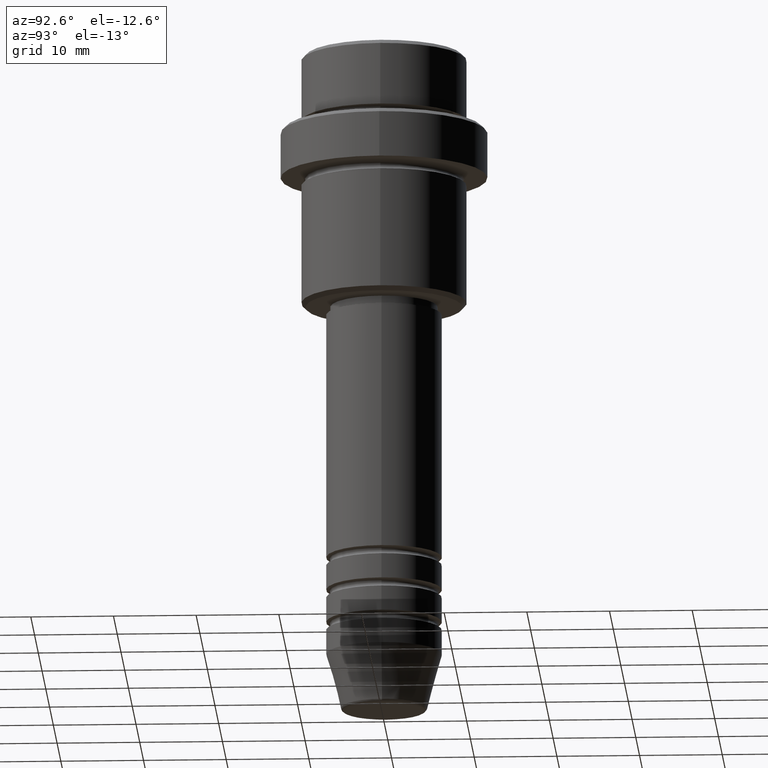
[diagram: clean part render]
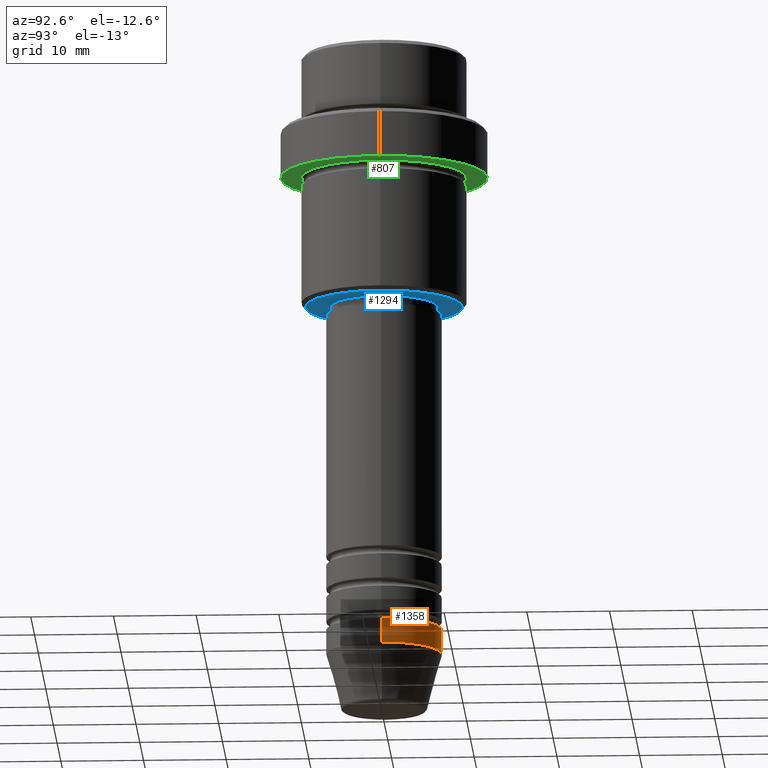
[diagram: same view with three faces highlighted in distinct colors, each labeled with its STEP entity id]
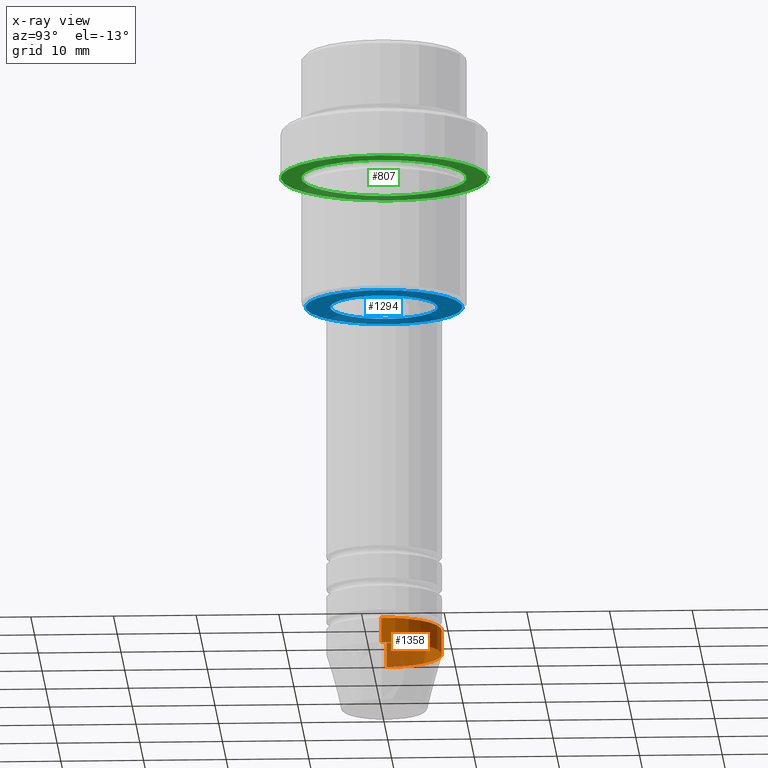
[diagram: x-ray of the same camera — body ghosted, the three highlighted faces saturated]
A machine part, auxiliary view with three faces highlighted in distinct colors.
The next image is the same camera in x-ray (body ghosted, the three faces saturated) — at least one of them is partly hidden behind the body in this view.
Their STEP definitions:

[orange] entity #1358 — the highlighted cylindrical surface (partial cylindrical patch) has radius 7 mm, axis along (-0, -0, 1).
#82 = DIRECTION ( 'NONE',  ( -0.000000000000000000, -0.000000000000000000, 1.000000000000000000 ) ) ;
#129 = VERTEX_POINT ( 'NONE', #1281 ) ;
#150 = CARTESIAN_POINT ( 'NONE',  ( 7.000000000000000000, 0.000000000000000000, -71.00000000000000000 ) ) ;
#168 = EDGE_CURVE ( 'NONE', #373, #342, #328, .T. ) ;
#184 = EDGE_CURVE ( 'NONE', #373, #355, #387, .T. ) ;
#189 = DIRECTION ( 'NONE',  ( -0.000000000000000000, -0.000000000000000000, 1.000000000000000000 ) ) ;
#194 = DIRECTION ( 'NONE',  ( 1.000000000000000000, 0.000000000000000000, 0.000000000000000000 ) ) ;
#269 = LINE ( 'NONE', #1128, #1290 ) ;
#276 = ORIENTED_EDGE ( 'NONE', *, *, #344, .T. ) ;
#295 = AXIS2_PLACEMENT_3D ( 'NONE', #684, #910, #1115 ) ;
#328 = LINE ( 'NONE', #856, #1334 ) ;
#338 = CYLINDRICAL_SURFACE ( 'NONE', #520, 7.000000000000000000 ) ;
#342 = VERTEX_POINT ( 'NONE', #150 ) ;
#344 = EDGE_CURVE ( 'NONE', #355, #129, #269, .T. ) ;
#355 = VERTEX_POINT ( 'NONE', #573 ) ;
#373 = VERTEX_POINT ( 'NONE', #825 ) ;
#387 = CIRCLE ( 'NONE', #690, 7.000000000000000000 ) ;
#469 = ORIENTED_EDGE ( 'NONE', *, *, #184, .T. ) ;
#480 = ORIENTED_EDGE ( 'NONE', *, *, #168, .F. ) ;
#500 = EDGE_CURVE ( 'NONE', #342, #129, #527, .T. ) ;
#520 = AXIS2_PLACEMENT_3D ( 'NONE', #747, #82, #1063 ) ;
#527 = CIRCLE ( 'NONE', #295, 7.000000000000000000 ) ;
#573 = CARTESIAN_POINT ( 'NONE',  ( -7.000000000000000000, 8.572527594031473190E-16, -74.00000000000000000 ) ) ;
#684 = CARTESIAN_POINT ( 'NONE',  ( 0.000000000000000000, 0.000000000000000000, -71.00000000000000000 ) ) ;
#690 = AXIS2_PLACEMENT_3D ( 'NONE', #731, #831, #194 ) ;
#728 = EDGE_LOOP ( 'NONE', ( #469, #276, #1042, #480 ) ) ;
#731 = CARTESIAN_POINT ( 'NONE',  ( 0.000000000000000000, 0.000000000000000000, -74.00000000000000000 ) ) ;
#747 = CARTESIAN_POINT ( 'NONE',  ( 0.000000000000000000, 0.000000000000000000, 0.000000000000000000 ) ) ;
#825 = CARTESIAN_POINT ( 'NONE',  ( 7.000000000000000000, 0.000000000000000000, -74.00000000000000000 ) ) ;
#831 = DIRECTION ( 'NONE',  ( -0.000000000000000000, -0.000000000000000000, 1.000000000000000000 ) ) ;
#856 = CARTESIAN_POINT ( 'NONE',  ( 7.000000000000000000, 0.000000000000000000, 0.000000000000000000 ) ) ;
#862 = FACE_OUTER_BOUND ( 'NONE', #728, .T. ) ;
#910 = DIRECTION ( 'NONE',  ( -0.000000000000000000, -0.000000000000000000, 1.000000000000000000 ) ) ;
#1042 = ORIENTED_EDGE ( 'NONE', *, *, #500, .F. ) ;
#1063 = DIRECTION ( 'NONE',  ( 1.000000000000000000, 0.000000000000000000, 0.000000000000000000 ) ) ;
#1115 = DIRECTION ( 'NONE',  ( 1.000000000000000000, 0.000000000000000000, 0.000000000000000000 ) ) ;
#1128 = CARTESIAN_POINT ( 'NONE',  ( -7.000000000000000000, 8.572527594031473190E-16, 0.000000000000000000 ) ) ;
#1281 = CARTESIAN_POINT ( 'NONE',  ( -7.000000000000000000, 8.572527594031473190E-16, -71.00000000000000000 ) ) ;
#1290 = VECTOR ( 'NONE', #1354, 1000.000000000000000 ) ;
#1334 = VECTOR ( 'NONE', #189, 1000.000000000000000 ) ;
#1354 = DIRECTION ( 'NONE',  ( -0.000000000000000000, -0.000000000000000000, 1.000000000000000000 ) ) ;
#1358 = ADVANCED_FACE ( 'NONE', ( #862 ), #338, .T. ) ;

[blue] entity #1294 — the highlighted planar face has unit normal (0, 0, -1).
#5 = EDGE_CURVE ( 'NONE', #1391, #676, #1289, .T. ) ;
#101 = ORIENTED_EDGE ( 'NONE', *, *, #5, .T. ) ;
#141 = CARTESIAN_POINT ( 'NONE',  ( -6.499999999999994671, 7.960204194457788574E-16, -31.00000000000000000 ) ) ;
#152 = DIRECTION ( 'NONE',  ( 0.000000000000000000, 0.000000000000000000, -1.000000000000000000 ) ) ;
#161 = CARTESIAN_POINT ( 'NONE',  ( 6.499999999999994671, 0.000000000000000000, -31.00000000000000000 ) ) ;
#174 = ORIENTED_EDGE ( 'NONE', *, *, #681, .T. ) ;
#191 = DIRECTION ( 'NONE',  ( -0.000000000000000000, -0.000000000000000000, 1.000000000000000000 ) ) ;
#204 = AXIS2_PLACEMENT_3D ( 'NONE', #1160, #191, #1390 ) ;
#265 = CARTESIAN_POINT ( 'NONE',  ( 0.000000000000000000, 0.000000000000000000, -31.00000000000000000 ) ) ;
#378 = AXIS2_PLACEMENT_3D ( 'NONE', #738, #940, #864 ) ;
#407 = DIRECTION ( 'NONE',  ( -0.000000000000000000, -0.000000000000000000, 1.000000000000000000 ) ) ;
#424 = EDGE_LOOP ( 'NONE', ( #174, #483 ) ) ;
#483 = ORIENTED_EDGE ( 'NONE', *, *, #590, .T. ) ;
#567 = EDGE_LOOP ( 'NONE', ( #1363, #101 ) ) ;
#590 = EDGE_CURVE ( 'NONE', #1330, #1394, #1153, .T. ) ;
#594 = AXIS2_PLACEMENT_3D ( 'NONE', #265, #1263, #612 ) ;
#612 = DIRECTION ( 'NONE',  ( -1.000000000000000000, 0.000000000000000000, 0.000000000000000000 ) ) ;
#676 = VERTEX_POINT ( 'NONE', #161 ) ;
#681 = EDGE_CURVE ( 'NONE', #1394, #1330, #693, .T. ) ;
#693 = CIRCLE ( 'NONE', #594, 9.499999999999980460 ) ;
#738 = CARTESIAN_POINT ( 'NONE',  ( 0.000000000000000000, 9.999999999999998224, -31.00000000000000000 ) ) ;
#793 = DIRECTION ( 'NONE',  ( 1.000000000000000000, 0.000000000000000000, 0.000000000000000000 ) ) ;
#853 = FACE_BOUND ( 'NONE', #567, .T. ) ;
#864 = DIRECTION ( 'NONE',  ( -1.000000000000000000, 0.000000000000000000, -0.000000000000000000 ) ) ;
#925 = DIRECTION ( 'NONE',  ( -1.000000000000000000, 0.000000000000000000, 0.000000000000000000 ) ) ;
#929 = CARTESIAN_POINT ( 'NONE',  ( 0.000000000000000000, 0.000000000000000000, -31.00000000000000000 ) ) ;
#940 = DIRECTION ( 'NONE',  ( 0.000000000000000000, 0.000000000000000000, -1.000000000000000000 ) ) ;
#958 = FACE_OUTER_BOUND ( 'NONE', #424, .T. ) ;
#980 = CARTESIAN_POINT ( 'NONE',  ( 9.499999999999980460, 0.000000000000000000, -31.00000000000000000 ) ) ;
#1007 = AXIS2_PLACEMENT_3D ( 'NONE', #929, #407, #793 ) ;
#1026 = CIRCLE ( 'NONE', #1007, 6.499999999999994671 ) ;
#1039 = EDGE_CURVE ( 'NONE', #676, #1391, #1026, .T. ) ;
#1153 = CIRCLE ( 'NONE', #1240, 9.499999999999980460 ) ;
#1160 = CARTESIAN_POINT ( 'NONE',  ( 0.000000000000000000, 0.000000000000000000, -31.00000000000000000 ) ) ;
#1240 = AXIS2_PLACEMENT_3D ( 'NONE', #1349, #152, #925 ) ;
#1263 = DIRECTION ( 'NONE',  ( 0.000000000000000000, 0.000000000000000000, -1.000000000000000000 ) ) ;
#1289 = CIRCLE ( 'NONE', #204, 6.499999999999994671 ) ;
#1292 = PLANE ( 'NONE',  #378 ) ;
#1294 = ADVANCED_FACE ( 'NONE', ( #958, #853 ), #1292, .T. ) ;
#1330 = VERTEX_POINT ( 'NONE', #1389 ) ;
#1349 = CARTESIAN_POINT ( 'NONE',  ( 0.000000000000000000, 0.000000000000000000, -31.00000000000000000 ) ) ;
#1363 = ORIENTED_EDGE ( 'NONE', *, *, #1039, .T. ) ;
#1389 = CARTESIAN_POINT ( 'NONE',  ( -9.499999999999980460, 1.194030629168668089E-15, -31.00000000000000000 ) ) ;
#1390 = DIRECTION ( 'NONE',  ( 1.000000000000000000, 0.000000000000000000, 0.000000000000000000 ) ) ;
#1391 = VERTEX_POINT ( 'NONE', #141 ) ;
#1394 = VERTEX_POINT ( 'NONE', #980 ) ;

[green] entity #807 — the highlighted planar face has unit normal (0, 0, -1).
#8 = DIRECTION ( 'NONE',  ( -0.000000000000000000, -0.000000000000000000, 1.000000000000000000 ) ) ;
#77 = VERTEX_POINT ( 'NONE', #1040 ) ;
#84 = AXIS2_PLACEMENT_3D ( 'NONE', #1002, #132, #361 ) ;
#127 = EDGE_CURVE ( 'NONE', #417, #77, #1147, .T. ) ;
#132 = DIRECTION ( 'NONE',  ( -0.000000000000000000, -0.000000000000000000, 1.000000000000000000 ) ) ;
#139 = AXIS2_PLACEMENT_3D ( 'NONE', #419, #730, #1403 ) ;
#144 = EDGE_LOOP ( 'NONE', ( #699, #1099 ) ) ;
#166 = EDGE_LOOP ( 'NONE', ( #668, #1001 ) ) ;
#197 = CIRCLE ( 'NONE', #477, 9.999999999999992895 ) ;
#255 = VERTEX_POINT ( 'NONE', #895 ) ;
#309 = FACE_OUTER_BOUND ( 'NONE', #144, .T. ) ;
#313 = VERTEX_POINT ( 'NONE', #458 ) ;
#360 = CIRCLE ( 'NONE', #84, 12.50000000000000000 ) ;
#361 = DIRECTION ( 'NONE',  ( 1.000000000000000000, 0.000000000000000000, 0.000000000000000000 ) ) ;
#417 = VERTEX_POINT ( 'NONE', #851 ) ;
#419 = CARTESIAN_POINT ( 'NONE',  ( 0.000000000000000000, 12.50000000000000000, -15.00000000000000000 ) ) ;
#425 = EDGE_CURVE ( 'NONE', #255, #313, #801, .T. ) ;
#458 = CARTESIAN_POINT ( 'NONE',  ( -12.50000000000000000, 1.530808498934191521E-15, -15.00000000000000000 ) ) ;
#477 = AXIS2_PLACEMENT_3D ( 'NONE', #1326, #8, #758 ) ;
#548 = AXIS2_PLACEMENT_3D ( 'NONE', #1373, #1054, #947 ) ;
#624 = FACE_BOUND ( 'NONE', #166, .T. ) ;
#660 = DIRECTION ( 'NONE',  ( -0.000000000000000000, -0.000000000000000000, 1.000000000000000000 ) ) ;
#668 = ORIENTED_EDGE ( 'NONE', *, *, #127, .T. ) ;
#699 = ORIENTED_EDGE ( 'NONE', *, *, #425, .F. ) ;
#730 = DIRECTION ( 'NONE',  ( 0.000000000000000000, 0.000000000000000000, -1.000000000000000000 ) ) ;
#758 = DIRECTION ( 'NONE',  ( -1.000000000000000000, 0.000000000000000000, 0.000000000000000000 ) ) ;
#801 = CIRCLE ( 'NONE', #1123, 12.50000000000000000 ) ;
#807 = ADVANCED_FACE ( 'NONE', ( #624, #309 ), #969, .T. ) ;
#851 = CARTESIAN_POINT ( 'NONE',  ( -9.999999999999992895, 0.000000000000000000, -15.00000000000000000 ) ) ;
#895 = CARTESIAN_POINT ( 'NONE',  ( 12.50000000000000000, 0.000000000000000000, -15.00000000000000000 ) ) ;
#947 = DIRECTION ( 'NONE',  ( -1.000000000000000000, 0.000000000000000000, 0.000000000000000000 ) ) ;
#969 = PLANE ( 'NONE',  #139 ) ;
#1001 = ORIENTED_EDGE ( 'NONE', *, *, #1087, .T. ) ;
#1002 = CARTESIAN_POINT ( 'NONE',  ( 0.000000000000000000, 0.000000000000000000, -15.00000000000000000 ) ) ;
#1040 = CARTESIAN_POINT ( 'NONE',  ( 9.999999999999992895, 1.224646799147352468E-15, -15.00000000000000000 ) ) ;
#1054 = DIRECTION ( 'NONE',  ( -0.000000000000000000, -0.000000000000000000, 1.000000000000000000 ) ) ;
#1087 = EDGE_CURVE ( 'NONE', #77, #417, #197, .T. ) ;
#1091 = DIRECTION ( 'NONE',  ( 1.000000000000000000, 0.000000000000000000, 0.000000000000000000 ) ) ;
#1099 = ORIENTED_EDGE ( 'NONE', *, *, #1145, .F. ) ;
#1123 = AXIS2_PLACEMENT_3D ( 'NONE', #1204, #660, #1091 ) ;
#1145 = EDGE_CURVE ( 'NONE', #313, #255, #360, .T. ) ;
#1147 = CIRCLE ( 'NONE', #548, 9.999999999999992895 ) ;
#1204 = CARTESIAN_POINT ( 'NONE',  ( 0.000000000000000000, 0.000000000000000000, -15.00000000000000000 ) ) ;
#1326 = CARTESIAN_POINT ( 'NONE',  ( 0.000000000000000000, 0.000000000000000000, -15.00000000000000000 ) ) ;
#1373 = CARTESIAN_POINT ( 'NONE',  ( 0.000000000000000000, 0.000000000000000000, -15.00000000000000000 ) ) ;
#1403 = DIRECTION ( 'NONE',  ( -1.000000000000000000, 0.000000000000000000, -0.000000000000000000 ) ) ;